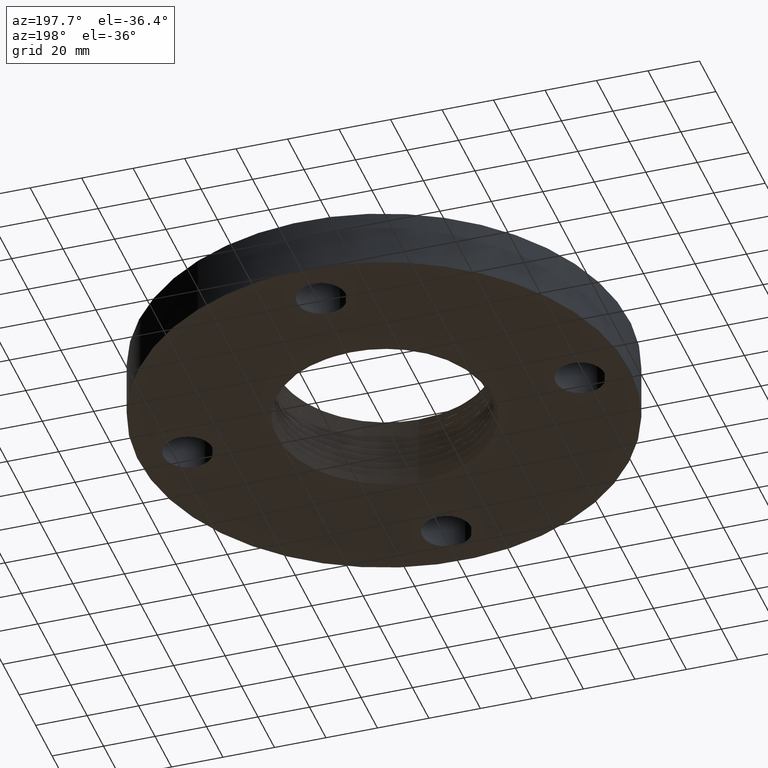
[diagram: clean part render]
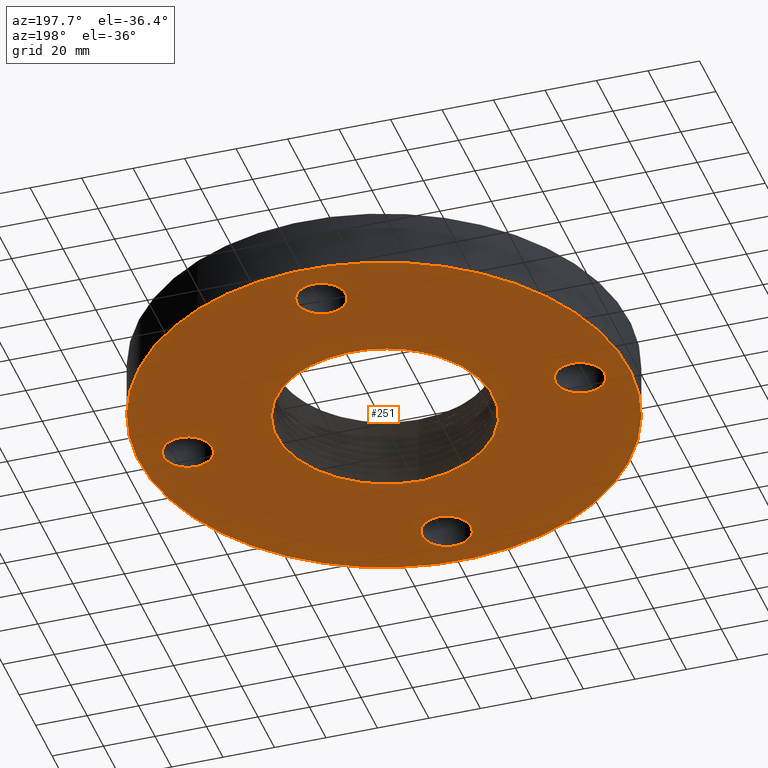
[diagram: same view with one face highlighted and labeled with its STEP entity id]
A machine part, auxiliary view. The second image highlights one B-rep face of the part: STEP entity #251.
In plain terms, the highlighted planar face has unit normal (0, 0, -1).
Its self-contained STEP definition (entity closure, byte-faithful):
#38=AXIS2_PLACEMENT_3D('Plane Axis2P3D',#35,#36,#37) ;
#42=AXIS2_PLACEMENT_3D('Circle Axis2P3D',#40,#41,$) ;
#51=AXIS2_PLACEMENT_3D('Circle Axis2P3D',#49,#50,$) ;
#167=AXIS2_PLACEMENT_3D('Circle Axis2P3D',#165,#166,$) ;
#181=AXIS2_PLACEMENT_3D('Circle Axis2P3D',#179,#180,$) ;
#190=AXIS2_PLACEMENT_3D('Circle Axis2P3D',#188,#189,$) ;
#199=AXIS2_PLACEMENT_3D('Circle Axis2P3D',#197,#198,$) ;
#208=AXIS2_PLACEMENT_3D('Circle Axis2P3D',#206,#207,$) ;
#217=AXIS2_PLACEMENT_3D('Circle Axis2P3D',#215,#216,$) ;
#226=AXIS2_PLACEMENT_3D('Circle Axis2P3D',#224,#225,$) ;
#235=AXIS2_PLACEMENT_3D('Circle Axis2P3D',#233,#234,$) ;
#244=AXIS2_PLACEMENT_3D('Circle Axis2P3D',#242,#243,$) ;
#35=CARTESIAN_POINT('Axis2P3D Location',(0.,0.,0.)) ;
#40=CARTESIAN_POINT('Axis2P3D Location',(0.,0.,0.)) ;
#44=CARTESIAN_POINT('Vertex',(1.79784576977,3.2909346071,4.19611851827E-016)) ;
#46=CARTESIAN_POINT('Vertex',(-1.79784576977,-3.2909346071,4.19611851827E-016)) ;
#49=CARTESIAN_POINT('Axis2P3D Location',(0.,0.,0.)) ;
#59=CARTESIAN_POINT('Control Point',(0.256067430317,1.58782357524,0.)) ;
#60=CARTESIAN_POINT('Control Point',(0.205419242143,1.59697343593,0.)) ;
#61=CARTESIAN_POINT('Control Point',(0.154380196305,1.60410178244,0.)) ;
#62=CARTESIAN_POINT('Control Point',(0.103059094449,1.6091871805,0.)) ;
#63=CARTESIAN_POINT('Control Point',(0.0515671565522,1.61221690529,0.)) ;
#64=CARTESIAN_POINT('Control Point',(1.69769362719E-005,1.61318712866,0.)) ;
#65=CARTESIAN_POINT('Vertex',(0.25606742967,1.58782355474,-5.31403442684E-012)) ;
#67=CARTESIAN_POINT('Vertex',(1.69769362741E-005,1.61318712866,-1.31128703696E-017)) ;
#71=CARTESIAN_POINT('Control Point',(-0.78066465319,1.42902677422,0.)) ;
#72=CARTESIAN_POINT('Control Point',(-0.665313274083,1.48927923547,0.)) ;
#73=CARTESIAN_POINT('Control Point',(-0.544050487737,1.53794912124,0.)) ;
#74=CARTESIAN_POINT('Control Point',(-0.418416635759,1.57424886369,0.)) ;
#75=CARTESIAN_POINT('Control Point',(-0.258232684853,1.60353126803,0.)) ;
#76=CARTESIAN_POINT('Control Point',(-0.0965964663676,1.61259466985,0.)) ;
#77=CARTESIAN_POINT('Control Point',(-0.0643872464892,1.61359575199,0.)) ;
#78=CARTESIAN_POINT('Control Point',(-0.0321738475947,1.61379299058,0.)) ;
#79=CARTESIAN_POINT('Control Point',(1.6976936274E-005,1.61318712866,0.)) ;
#80=CARTESIAN_POINT('Vertex',(-0.78066465319,1.42902677422,-9.50683101795E-017)) ;
#84=CARTESIAN_POINT('Control Point',(-0.0804807064373,-1.70518909702,0.)) ;
#85=CARTESIAN_POINT('Control Point',(-0.215769973909,-1.69639225181,0.)) ;
#86=CARTESIAN_POINT('Control Point',(-0.350058728123,-1.67417353695,0.)) ;
#87=CARTESIAN_POINT('Control Point',(-0.481538448637,-1.63867187318,0.)) ;
#88=CARTESIAN_POINT('Control Point',(-0.735486855452,-1.54206804612,0.)) ;
#89=CARTESIAN_POINT('Control Point',(-0.964868518823,-1.39758948444,0.)) ;
#90=CARTESIAN_POINT('Control Point',(-1.07188560355,-1.31415736675,0.)) ;
#91=CARTESIAN_POINT('Control Point',(-1.26766072852,-1.1272355741,0.)) ;
#92=CARTESIAN_POINT('Control Point',(-1.42230062368,-0.905664184886,0.)) ;
#93=CARTESIAN_POINT('Control Point',(-1.48820014246,-0.787556511918,0.)) ;
#94=CARTESIAN_POINT('Control Point',(-1.59530414193,-0.54004702272,0.)) ;
#95=CARTESIAN_POINT('Control Point',(-1.65101776757,-0.276521843411,0.)) ;
#96=CARTESIAN_POINT('Control Point',(-1.66548158495,-0.142529369495,0.)) ;
#97=CARTESIAN_POINT('Control Point',(-1.66669507815,0.0423235020286,0.)) ;
#98=CARTESIAN_POINT('Control Point',(-1.64257822256,0.224620388974,0.)) ;
#99=CARTESIAN_POINT('Control Point',(-1.63413083572,0.274029808302,0.)) ;
#100=CARTESIAN_POINT('Control Point',(-1.59635717695,0.453757536852,0.)) ;
#101=CARTESIAN_POINT('Control Point',(-1.53395875835,0.627089078988,0.)) ;
#102=CARTESIAN_POINT('Control Point',(-1.47601185064,0.748003178854,0.)) ;
#103=CARTESIAN_POINT('Control Point',(-1.33662046379,0.976227720729,0.)) ;
#104=CARTESIAN_POINT('Control Point',(-1.15465810006,1.17153461427,0.)) ;
#105=CARTESIAN_POINT('Control Point',(-1.05413854712,1.25952748734,0.)) ;
#106=CARTESIAN_POINT('Control Point',(-0.936211186622,1.34322598721,0.)) ;
#107=CARTESIAN_POINT('Control Point',(-0.810586574466,1.41306537223,0.)) ;
#108=CARTESIAN_POINT('Control Point',(-0.80065706951,1.4184733038,0.)) ;
#109=CARTESIAN_POINT('Control Point',(-0.790683164475,1.42379372052,0.)) ;
#110=CARTESIAN_POINT('Control Point',(-0.78066465319,1.42902677422,0.)) ;
#111=CARTESIAN_POINT('Vertex',(-0.0804807064373,-1.70518909702,-2.18547839493E-018)) ;
#115=CARTESIAN_POINT('Control Point',(-0.0804807064373,-1.70518909702,0.)) ;
#116=CARTESIAN_POINT('Control Point',(-0.0643864843744,-1.70563200106,0.)) ;
#117=CARTESIAN_POINT('Control Point',(-0.0482886895261,-1.70588512328,0.)) ;
#118=CARTESIAN_POINT('Control Point',(-0.0321865235264,-1.70594838824,0.)) ;
#119=CARTESIAN_POINT('Control Point',(-0.0160907178893,-1.70582176413,0.)) ;
#120=CARTESIAN_POINT('Control Point',(-4.93350416696E-007,-1.70550535317,0.)) ;
#121=CARTESIAN_POINT('Vertex',(-4.93350416617E-007,-1.70550535317,-1.09273919747E-017)) ;
#125=CARTESIAN_POINT('Control Point',(-4.93350416687E-007,-1.70550535317,0.)) ;
#126=CARTESIAN_POINT('Control Point',(0.136274468557,-1.7028255339,0.)) ;
#127=CARTESIAN_POINT('Control Point',(0.272149087775,-1.68653192055,0.)) ;
#128=CARTESIAN_POINT('Control Point',(0.405812846187,-1.65667608844,0.)) ;
#129=CARTESIAN_POINT('Control Point',(0.567656024131,-1.60299863319,0.)) ;
#130=CARTESIAN_POINT('Control Point',(0.720649813155,-1.5300257611,0.)) ;
#131=CARTESIAN_POINT('Control Point',(0.750717002723,-1.51475315809,0.)) ;
#132=CARTESIAN_POINT('Control Point',(0.780383492508,-1.49874118906,0.)) ;
#133=CARTESIAN_POINT('Control Point',(0.809625061432,-1.482004054,0.)) ;
#134=CARTESIAN_POINT('Vertex',(0.809625061432,-1.482004054,2.18547839493E-018)) ;
#138=CARTESIAN_POINT('Control Point',(0.809625061432,-1.482004054,0.)) ;
#139=CARTESIAN_POINT('Control Point',(0.926621992365,-1.41503796737,0.)) ;
#140=CARTESIAN_POINT('Control Point',(1.03681959429,-1.33646156106,0.)) ;
#141=CARTESIAN_POINT('Control Point',(1.13866693166,-1.24718154369,0.)) ;
#142=CARTESIAN_POINT('Control Point',(1.32294050521,-1.04965768401,0.)) ;
#143=CARTESIAN_POINT('Control Point',(1.46407771236,-0.819965722499,0.)) ;
#144=CARTESIAN_POINT('Control Point',(1.52279484285,-0.698503767016,0.)) ;
#145=CARTESIAN_POINT('Control Point',(1.59766322469,-0.493089635387,0.)) ;
#146=CARTESIAN_POINT('Control Point',(1.63801308874,-0.279249711224,0.)) ;
#147=CARTESIAN_POINT('Control Point',(1.6483202524,-0.196183956975,0.)) ;
#148=CARTESIAN_POINT('Control Point',(1.66144714618,0.0208192270961,0.)) ;
#149=CARTESIAN_POINT('Control Point',(1.63904232022,0.237267396409,0.)) ;
#150=CARTESIAN_POINT('Control Point',(1.61182210454,0.368466007733,0.)) ;
#151=CARTESIAN_POINT('Control Point',(1.5313076174,0.623346310067,0.)) ;
#152=CARTESIAN_POINT('Control Point',(1.40166424278,0.856317102395,0.)) ;
#153=CARTESIAN_POINT('Control Point',(1.3252511012,0.965746374186,0.)) ;
#154=CARTESIAN_POINT('Control Point',(1.15148794693,1.16734824927,0.)) ;
#155=CARTESIAN_POINT('Control Point',(0.941130259297,1.32953097829,0.)) ;
#156=CARTESIAN_POINT('Control Point',(0.828123767288,1.39953518568,0.)) ;
#157=CARTESIAN_POINT('Control Point',(0.67180304124,1.47548127747,0.)) ;
#158=CARTESIAN_POINT('Control Point',(0.507700465142,1.52962832657,0.)) ;
#159=CARTESIAN_POINT('Control Point',(0.468403162391,1.54122313488,0.)) ;
#160=CARTESIAN_POINT('Control Point',(0.428773142636,1.55155810424,0.)) ;
#161=CARTESIAN_POINT('Control Point',(0.388864529247,1.5606212057,0.)) ;
#162=CARTESIAN_POINT('Vertex',(0.388864529469,1.56062120556,-1.85118761964E-013)) ;
#165=CARTESIAN_POINT('Axis2P3D Location',(0.,6.99353086378E-017,0.)) ;
#179=CARTESIAN_POINT('Axis2P3D Location',(3.00000000001,3.49676543189E-017,0.)) ;
#183=CARTESIAN_POINT('Vertex',(3.32909346072,-0.179784576977,0.)) ;
#185=CARTESIAN_POINT('Vertex',(2.6709065393,0.179784576977,0.)) ;
#188=CARTESIAN_POINT('Axis2P3D Location',(3.00000000001,6.99353086378E-017,0.)) ;
#197=CARTESIAN_POINT('Axis2P3D Location',(-3.1470888887E-016,-3.00000000001,0.)) ;
#201=CARTESIAN_POINT('Vertex',(0.179784576977,-2.6709065393,0.)) ;
#203=CARTESIAN_POINT('Vertex',(-0.179784576977,-3.32909346072,0.)) ;
#206=CARTESIAN_POINT('Axis2P3D Location',(-3.84644197508E-016,-3.00000000001,0.)) ;
#215=CARTESIAN_POINT('Axis2P3D Location',(-3.00000000001,-3.49676543189E-016,0.)) ;
#219=CARTESIAN_POINT('Vertex',(-2.6709065393,-0.179784576977,0.)) ;
#221=CARTESIAN_POINT('Vertex',(-3.32909346072,0.179784576977,0.)) ;
#224=CARTESIAN_POINT('Axis2P3D Location',(-3.00000000001,-5.94450123421E-016,0.)) ;
#233=CARTESIAN_POINT('Axis2P3D Location',(-6.2941777774E-016,3.00000000001,0.)) ;
#237=CARTESIAN_POINT('Vertex',(-0.179784576977,2.6709065393,0.)) ;
#239=CARTESIAN_POINT('Vertex',(0.179784576977,3.32909346072,0.)) ;
#242=CARTESIAN_POINT('Axis2P3D Location',(-5.59482469102E-016,3.00000000001,0.)) ;
#36=DIRECTION('Axis2P3D Direction',(0.,0.,-0.0393700787402)) ;
#37=DIRECTION('Axis2P3D XDirection',(0.0393700787402,0.,0.)) ;
#41=DIRECTION('Axis2P3D Direction',(0.,0.,-0.0393700787402)) ;
#50=DIRECTION('Axis2P3D Direction',(0.,0.,-0.0393700787402)) ;
#166=DIRECTION('Axis2P3D Direction',(0.,0.,-0.0393700787402)) ;
#180=DIRECTION('Axis2P3D Direction',(0.,0.,-0.0393700787402)) ;
#189=DIRECTION('Axis2P3D Direction',(0.,0.,-0.0393700787402)) ;
#198=DIRECTION('Axis2P3D Direction',(0.,0.,-0.0393700787402)) ;
#207=DIRECTION('Axis2P3D Direction',(0.,0.,-0.0393700787402)) ;
#216=DIRECTION('Axis2P3D Direction',(0.,0.,-0.0393700787402)) ;
#225=DIRECTION('Axis2P3D Direction',(0.,0.,-0.0393700787402)) ;
#234=DIRECTION('Axis2P3D Direction',(0.,0.,-0.0393700787402)) ;
#243=DIRECTION('Axis2P3D Direction',(0.,0.,-0.0393700787402)) ;
#55=ORIENTED_EDGE('',*,*,#48,.T.) ;
#56=ORIENTED_EDGE('',*,*,#53,.T.) ;
#171=ORIENTED_EDGE('',*,*,#69,.T.) ;
#172=ORIENTED_EDGE('',*,*,#82,.F.) ;
#173=ORIENTED_EDGE('',*,*,#113,.F.) ;
#174=ORIENTED_EDGE('',*,*,#123,.T.) ;
#175=ORIENTED_EDGE('',*,*,#136,.T.) ;
#176=ORIENTED_EDGE('',*,*,#164,.T.) ;
#177=ORIENTED_EDGE('',*,*,#169,.F.) ;
#194=ORIENTED_EDGE('',*,*,#187,.F.) ;
#195=ORIENTED_EDGE('',*,*,#192,.F.) ;
#212=ORIENTED_EDGE('',*,*,#205,.F.) ;
#213=ORIENTED_EDGE('',*,*,#210,.F.) ;
#230=ORIENTED_EDGE('',*,*,#223,.F.) ;
#231=ORIENTED_EDGE('',*,*,#228,.F.) ;
#248=ORIENTED_EDGE('',*,*,#241,.F.) ;
#249=ORIENTED_EDGE('',*,*,#246,.F.) ;
#178=FACE_BOUND('',#170,.T.) ;
#196=FACE_BOUND('',#193,.T.) ;
#214=FACE_BOUND('',#211,.T.) ;
#232=FACE_BOUND('',#229,.T.) ;
#250=FACE_BOUND('',#247,.T.) ;
#251=ADVANCED_FACE('PartBody',(#57,#178,#196,#214,#232,#250),#39,.T.) ;
#58=B_SPLINE_CURVE_WITH_KNOTS('',5,(#59,#60,#61,#62,#63,#64),.UNSPECIFIED.,.F.,.U.,(6,6),(2.5069233173,11.8913596476),.UNSPECIFIED.) ;
#70=B_SPLINE_CURVE_WITH_KNOTS('',5,(#71,#72,#73,#74,#75,#76,#77,#78,#79),.UNSPECIFIED.,.F.,.U.,(6,3,6),(0.,23.5763104783,29.4364790651),.UNSPECIFIED.) ;
#83=B_SPLINE_CURVE_WITH_KNOTS('',5,(#84,#85,#86,#87,#88,#89,#90,#91,#92,#93,#94,#95,#96,#97,#98,#99,#100,#101,#102,#103,#104,#105,#106,#107,#108,#109,#110),.UNSPECIFIED.,.F.,.U.,(6,3,3,3,3,3,3,3,6),(0.,24.0037544842,48.0286971214,72.0593618374,96.0648003695,105.060951816,129.045295976,153.02928896,155.076941396),.UNSPECIFIED.) ;
#114=B_SPLINE_CURVE_WITH_KNOTS('',5,(#115,#116,#117,#118,#119,#120),.UNSPECIFIED.,.F.,.U.,(6,6),(0.,2.85060760059),.UNSPECIFIED.) ;
#124=B_SPLINE_CURVE_WITH_KNOTS('',5,(#125,#126,#127,#128,#129,#130,#131,#132,#133),.UNSPECIFIED.,.F.,.U.,(6,3,6),(0.,24.1430093937,30.1404057814),.UNSPECIFIED.) ;
#137=B_SPLINE_CURVE_WITH_KNOTS('',5,(#138,#139,#140,#141,#142,#143,#144,#145,#146,#147,#148,#149,#150,#151,#152,#153,#154,#155,#156,#157,#158,#159,#160,#161),.UNSPECIFIED.,.F.,.U.,(6,3,3,3,3,3,3,6),(0.,23.9958728973,47.9944085391,62.9939848274,87.0091366131,111.052766557,135.095679363,142.568618336),.UNSPECIFIED.) ;
#43=CIRCLE('generated circle',#42,3.75000000002) ;
#52=CIRCLE('generated circle',#51,3.75000000002) ;
#168=CIRCLE('generated circle',#167,1.60833894734) ;
#182=CIRCLE('generated circle',#181,0.375000000002) ;
#191=CIRCLE('generated circle',#190,0.375000000002) ;
#200=CIRCLE('generated circle',#199,0.375000000002) ;
#209=CIRCLE('generated circle',#208,0.375000000002) ;
#218=CIRCLE('generated circle',#217,0.375000000001) ;
#227=CIRCLE('generated circle',#226,0.375000000001) ;
#236=CIRCLE('generated circle',#235,0.375000000002) ;
#245=CIRCLE('generated circle',#244,0.375000000002) ;
#48=EDGE_CURVE('',#45,#47,#43,.T.) ;
#53=EDGE_CURVE('',#47,#45,#52,.T.) ;
#69=EDGE_CURVE('',#66,#68,#58,.T.) ;
#82=EDGE_CURVE('',#81,#68,#70,.T.) ;
#113=EDGE_CURVE('',#112,#81,#83,.T.) ;
#123=EDGE_CURVE('',#112,#122,#114,.T.) ;
#136=EDGE_CURVE('',#122,#135,#124,.T.) ;
#164=EDGE_CURVE('',#135,#163,#137,.T.) ;
#169=EDGE_CURVE('',#66,#163,#168,.T.) ;
#187=EDGE_CURVE('',#184,#186,#182,.T.) ;
#192=EDGE_CURVE('',#186,#184,#191,.T.) ;
#205=EDGE_CURVE('',#202,#204,#200,.T.) ;
#210=EDGE_CURVE('',#204,#202,#209,.T.) ;
#223=EDGE_CURVE('',#220,#222,#218,.T.) ;
#228=EDGE_CURVE('',#222,#220,#227,.T.) ;
#241=EDGE_CURVE('',#238,#240,#236,.T.) ;
#246=EDGE_CURVE('',#240,#238,#245,.T.) ;
#54=EDGE_LOOP('',(#55,#56)) ;
#170=EDGE_LOOP('',(#171,#172,#173,#174,#175,#176,#177)) ;
#193=EDGE_LOOP('',(#194,#195)) ;
#211=EDGE_LOOP('',(#212,#213)) ;
#229=EDGE_LOOP('',(#230,#231)) ;
#247=EDGE_LOOP('',(#248,#249)) ;
#57=FACE_OUTER_BOUND('',#54,.T.) ;
#39=PLANE('',#38) ;
#45=VERTEX_POINT('',#44) ;
#47=VERTEX_POINT('',#46) ;
#66=VERTEX_POINT('',#65) ;
#68=VERTEX_POINT('',#67) ;
#81=VERTEX_POINT('',#80) ;
#112=VERTEX_POINT('',#111) ;
#122=VERTEX_POINT('',#121) ;
#135=VERTEX_POINT('',#134) ;
#163=VERTEX_POINT('',#162) ;
#184=VERTEX_POINT('',#183) ;
#186=VERTEX_POINT('',#185) ;
#202=VERTEX_POINT('',#201) ;
#204=VERTEX_POINT('',#203) ;
#220=VERTEX_POINT('',#219) ;
#222=VERTEX_POINT('',#221) ;
#238=VERTEX_POINT('',#237) ;
#240=VERTEX_POINT('',#239) ;